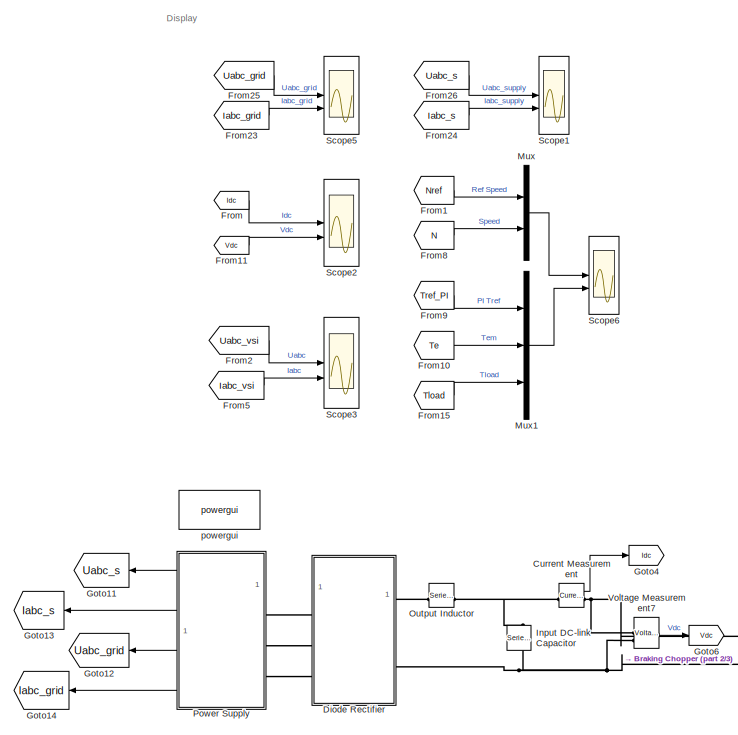
[diagram: root canvas - part 1/3, middle left region]
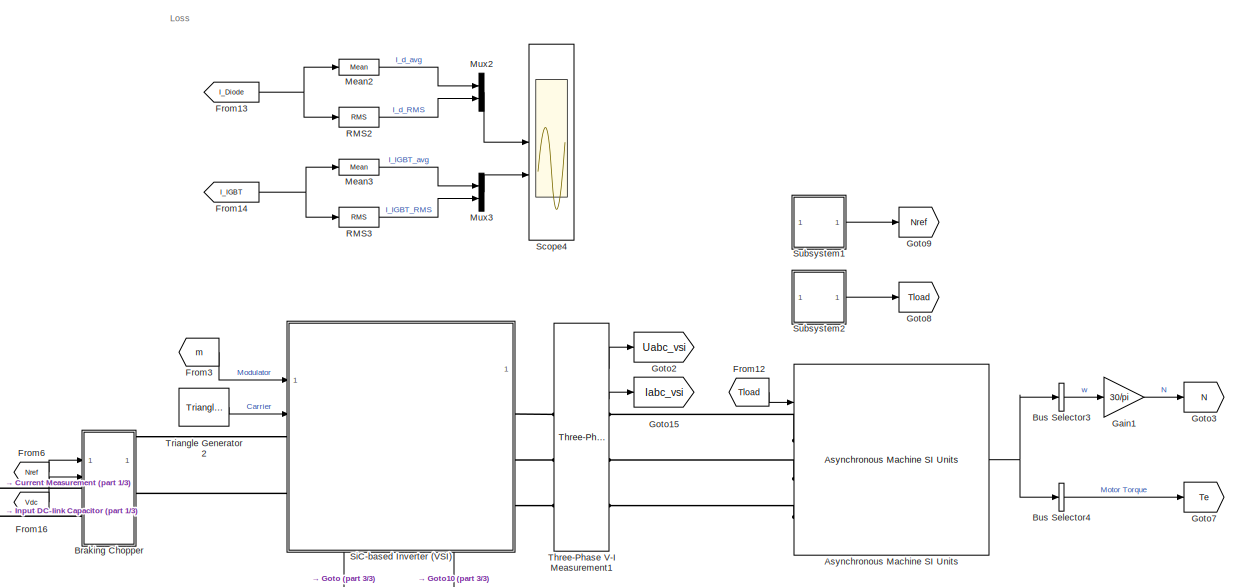
[diagram: root canvas - part 2/3, middle right region]
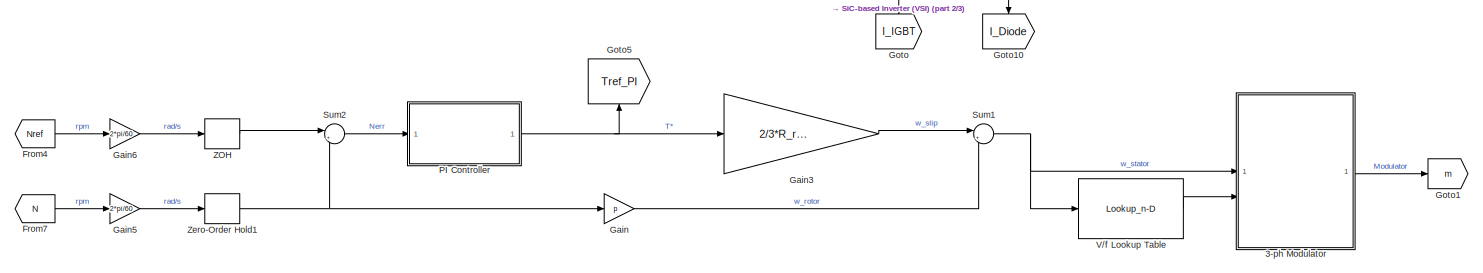
[diagram: root canvas - part 3/3, full width, bottom band]
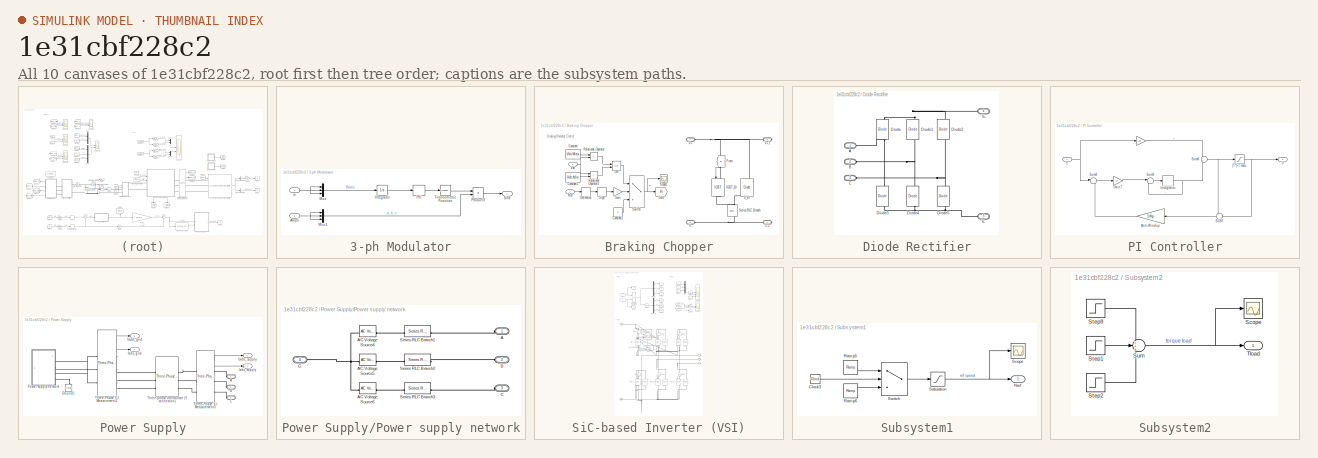
[diagram: thumbnail index - all 10 canvases of the model, root first then tree order]
MODEL slx_1e31cbf228c2
KIND model
CONFIG AbsTol = auto
CONFIG EnableMultiTasking = off
CONFIG FixedStep = auto
CONFIG MaxStep = auto
CONFIG MinStep = auto
CONFIG RelTol = 1e-3
CONFIG SampleTimeConstraint = Unconstrained
CONFIG SolverName = VariableStepAuto
CONFIG StartTime = 0.0
CONFIG StopTime = T_tot
BLOCK [SubSystem] 3-ph Modulator
BLOCK [Inport] 3-ph Modulator/Ampli
  Port = 2
BLOCK [Integrator] 3-ph Modulator/Integrator
BLOCK [Mux] 3-ph Modulator/Mux
  DisplayOption = bar
  Inputs = 3
BLOCK [Mux] 3-ph Modulator/Mux1
  DisplayOption = bar
  Inputs = 3
BLOCK [Bias] 3-ph Modulator/Phi
  Bias = [0, -2*pi/3, 2*pi/3]
  SaturateOnIntegerOverflow = off
BLOCK [Product] 3-ph Modulator/Product3
BLOCK [Outport] 3-ph Modulator/Sine
BLOCK [Trigonometry] 3-ph Modulator/Trigonometric Function
BLOCK [Inport] 3-ph Modulator/w
BLOCK [Reference] Asynchronous Machine SI Units  REF=spsAsynchronousMachineSIUnitsLib/Asynchronous Machine
SI Units
  LibrarySourceBlock = sps_lib/Electrical Machines/Asynchronous Machine\nSI Units
  SourceBlock = spsAsynchronousMachineSIUnitsLib/Asynchronous Machine\nSI Units
  SourceType = Asynchronous Machine
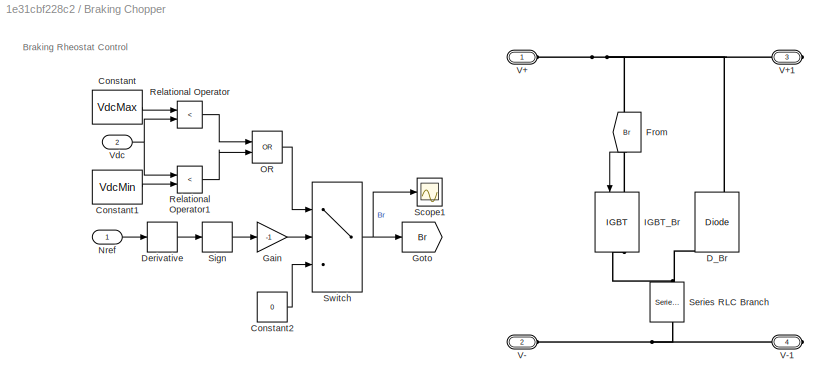
BLOCK [SubSystem] Braking Chopper
  PortSchema = {"entries":[{"content":{"sides":[{"content":{"connectorIds":["LConn1","In1","In2","LConn2"]},"type":"ConnectorPlacement.EquallySpacedRectSide","uuid":"08066bb6-7173-482b-b457-6e49107a8511"},{"content":{"connectorIds":["RConn1","RConn2"],"side":"RIGHT"},"type":"ConnectorPlacement.EquallySpacedRectSide","uuid":"28fab536-82b6-47c9-b368-73f431d395c4"},{"content":{"side":"TOP"},"type":"ConnectorPlaceme...<+257ch>
BLOCK [Constant] Braking Chopper/Constant
  Value = VdcMax
BLOCK [Constant] Braking Chopper/Constant1
  Value = VdcMin
BLOCK [Constant] Braking Chopper/Constant2
  Value = 0
BLOCK [Reference] Braking Chopper/D_Br  REF=spsDiodeLib/Diode
  LibrarySourceBlock = sps_lib/Power Electronics/Diode
  NameLocation = right
  SourceBlock = spsDiodeLib/Diode
  SourceType = Diode
BLOCK [Derivative] Braking Chopper/Derivative
BLOCK [From] Braking Chopper/From
  GotoTag = Br
  NameLocation = left
BLOCK [Gain] Braking Chopper/Gain
  Gain = -1
BLOCK [Goto] Braking Chopper/Goto
  GotoTag = Br
BLOCK [Reference] Braking Chopper/IGBT_Br  REF=spsIGBTLib/IGBT
  LibrarySourceBlock = sps_lib/Power Electronics/IGBT
  NameLocation = left
  SourceBlock = spsIGBTLib/IGBT
  SourceType = IGBT
BLOCK [Inport] Braking Chopper/Nref
BLOCK [Logic] Braking Chopper/OR
  AllPortsSameDT = off
  IconShape = distinctive
  Operator = OR
  OutDataTypeStr = boolean
BLOCK [RelationalOperator] Braking Chopper/Relational Operator
  InputSameDT = off
  Operator = <
  OutDataTypeStr = boolean
  RndMeth = Simplest
BLOCK [RelationalOperator] Braking Chopper/Relational Operator1
  InputSameDT = off
  Operator = <
  OutDataTypeStr = boolean
  RndMeth = Simplest
BLOCK [Scope] Braking Chopper/Scope1
  Floating = off
  NumInputPorts = 1
  ScopeSpecificationString = Simulink.scopes.TimeScopeBlockCfg('CurrentConfiguration', extmgr.ConfigurationSet(extmgr.Configuration('Core','General UI',true,'FigureColor',[1 1 1]),extmgr.Configuration('Core','Source UI',true),extmgr.Configuration('Sources','WiredSimulink',true,'DataLoggingVariableName','ScopeData1'),extmgr.Configuration('Visuals','Time Domain',true,'SerializedDisplays',{struct('MinYLimReal','-0.125','MaxYLimR...<+1944ch>
BLOCK [Reference] Braking Chopper/Series RLC Branch  REF=spsSeriesRLCBranchLib/Series RLC Branch
  LibrarySourceBlock = sps_lib/Passives/Series RLC Branch
  NameLocation = left
  SourceBlock = spsSeriesRLCBranchLib/Series RLC Branch
  SourceType = Series RLC Branch
BLOCK [Signum] Braking Chopper/Sign
BLOCK [Switch] Braking Chopper/Switch
  Criteria = u2 > Threshold
  InputSameDT = off
  SaturateOnIntegerOverflow = off
BLOCK [PMIOPort] Braking Chopper/V+
  Side = Left
BLOCK [PMIOPort] Braking Chopper/V+1
  Port = 3
  Side = Right
BLOCK [PMIOPort] Braking Chopper/V-
  Port = 2
  Side = Left
BLOCK [PMIOPort] Braking Chopper/V-1
  Port = 4
  Side = Right
BLOCK [Inport] Braking Chopper/Vdc
  Port = 2
BLOCK [BusSelector] Bus Selector3
  OutputAsBus = on
  OutputSignals = Mechanical.Rotor speed (wm)
BLOCK [BusSelector] Bus Selector4
  OutputAsBus = on
  OutputSignals = Mechanical.Electromagnetic torque Te (N*m)
BLOCK [Reference] Current Measurement  REF=spsCurrentMeasurementLib/Current Measurement
  LibrarySourceBlock = sps_lib/Sensors and Measurements/Current Measurement
  SourceBlock = spsCurrentMeasurementLib/Current Measurement
  SourceType = Current Measurement
  UserDataPersistent = on
BLOCK [SubSystem] Diode Rectifier
BLOCK [PMIOPort] Diode Rectifier/A
  Side = Left
BLOCK [PMIOPort] Diode Rectifier/B
  Port = 2
  Side = Left
BLOCK [PMIOPort] Diode Rectifier/C
  Port = 3
  Side = Left
BLOCK [Reference] Diode Rectifier/Diode  REF=spsDiodeLib/Diode
  LibrarySourceBlock = sps_lib/Power Electronics/Diode
  NameLocation = right
  SourceBlock = spsDiodeLib/Diode
  SourceType = Diode
BLOCK [Reference] Diode Rectifier/Diode1  REF=spsDiodeLib/Diode
  LibrarySourceBlock = sps_lib/Power Electronics/Diode
  NameLocation = right
  SourceBlock = spsDiodeLib/Diode
  SourceType = Diode
BLOCK [Reference] Diode Rectifier/Diode2  REF=spsDiodeLib/Diode
  LibrarySourceBlock = sps_lib/Power Electronics/Diode
  NameLocation = right
  SourceBlock = spsDiodeLib/Diode
  SourceType = Diode
BLOCK [Reference] Diode Rectifier/Diode3  REF=spsDiodeLib/Diode
  LibrarySourceBlock = sps_lib/Power Electronics/Diode
  NameLocation = right
  SourceBlock = spsDiodeLib/Diode
  SourceType = Diode
BLOCK [Reference] Diode Rectifier/Diode4  REF=spsDiodeLib/Diode
  LibrarySourceBlock = sps_lib/Power Electronics/Diode
  NameLocation = right
  SourceBlock = spsDiodeLib/Diode
  SourceType = Diode
BLOCK [Reference] Diode Rectifier/Diode5  REF=spsDiodeLib/Diode
  LibrarySourceBlock = sps_lib/Power Electronics/Diode
  NameLocation = right
  SourceBlock = spsDiodeLib/Diode
  SourceType = Diode
BLOCK [PMIOPort] Diode Rectifier/V+
  Port = 4
  Side = Right
BLOCK [PMIOPort] Diode Rectifier/V-
  Port = 5
  Side = Right
BLOCK [From] From
  GotoTag = Idc
BLOCK [From] From1
  GotoTag = Nref
BLOCK [From] From10
  GotoTag = Te
BLOCK [From] From11
  GotoTag = Vdc
BLOCK [From] From12
  GotoTag = Tload
BLOCK [From] From13
  GotoTag = I_Diode
BLOCK [From] From14
  GotoTag = I_IGBT
BLOCK [From] From15
  GotoTag = Tload
BLOCK [From] From16
  GotoTag = Vdc
BLOCK [From] From2
  GotoTag = Uabc_vsi
BLOCK [From] From23
  GotoTag = Iabc_grid
BLOCK [From] From24
  GotoTag = Iabc_s
BLOCK [From] From25
  GotoTag = Uabc_grid
BLOCK [From] From26
  GotoTag = Uabc_s
BLOCK [From] From3
  GotoTag = m
BLOCK [From] From4
  GotoTag = Nref
BLOCK [From] From5
  GotoTag = Iabc_vsi
BLOCK [From] From6
  GotoTag = Nref
BLOCK [From] From7
  GotoTag = N
BLOCK [From] From8
  GotoTag = N
BLOCK [From] From9
  GotoTag = Tref_PI
BLOCK [Gain] Gain
  Gain = p
BLOCK [Gain] Gain1
  Gain = 30/pi
BLOCK [Gain] Gain3
  Gain = 2/3*R_r/(p*Phi_n^2)
BLOCK [Gain] Gain5
  Gain = 2*pi/60
BLOCK [Gain] Gain6
  Gain = 2*pi/60
BLOCK [Goto] Goto
  GotoTag = I_IGBT
  NameLocation = left
BLOCK [Goto] Goto1
  GotoTag = m
BLOCK [Goto] Goto10
  GotoTag = I_Diode
  NameLocation = left
BLOCK [Goto] Goto11
  GotoTag = Uabc_s
  NameLocation = top
BLOCK [Goto] Goto12
  GotoTag = Uabc_grid
  NameLocation = top
BLOCK [Goto] Goto13
  GotoTag = Iabc_s
  NameLocation = top
BLOCK [Goto] Goto14
  GotoTag = Iabc_grid
  NameLocation = top
BLOCK [Goto] Goto15
  GotoTag = Iabc_vsi
BLOCK [Goto] Goto2
  GotoTag = Uabc_vsi
BLOCK [Goto] Goto3
  GotoTag = N
BLOCK [Goto] Goto4
  GotoTag = Idc
BLOCK [Goto] Goto5
  GotoTag = Tref_PI
  NameLocation = right
BLOCK [Goto] Goto6
  GotoTag = Vdc
BLOCK [Goto] Goto7
  GotoTag = Te
BLOCK [Goto] Goto8
  GotoTag = Tload
BLOCK [Goto] Goto9
  GotoTag = Nref
BLOCK [Reference] Input DC-link Capacitor  REF=spsSeriesRLCBranchLib/Series RLC Branch
  LibrarySourceBlock = sps_lib/Passives/Series RLC Branch
  NameLocation = left
  SourceBlock = spsSeriesRLCBranchLib/Series RLC Branch
  SourceType = Series RLC Branch
BLOCK [Reference] Mean2  REF=spsMeanLib/Mean
  LibrarySourceBlock = sps_lib/Sensors and Measurements/Mean
  SourceBlock = spsMeanLib/Mean
  SourceType = Mean
BLOCK [Reference] Mean3  REF=spsMeanLib/Mean
  LibrarySourceBlock = sps_lib/Sensors and Measurements/Mean
  SourceBlock = spsMeanLib/Mean
  SourceType = Mean
BLOCK [Mux] Mux
  DisplayOption = bar
  Inputs = 2
BLOCK [Mux] Mux1
  DisplayOption = bar
  Inputs = 3
BLOCK [Mux] Mux2
  DisplayOption = bar
  Inputs = 2
BLOCK [Mux] Mux3
  DisplayOption = bar
  Inputs = 2
BLOCK [Reference] Output Inductor  REF=spsSeriesRLCBranchLib/Series RLC Branch
  LibrarySourceBlock = sps_lib/Passives/Series RLC Branch
  NameLocation = top
  SourceBlock = spsSeriesRLCBranchLib/Series RLC Branch
  SourceType = Series RLC Branch
BLOCK [SubSystem] PI Controller
BLOCK [Gain] PI Controller/ 
  Gain = Kp
BLOCK [Gain] PI Controller/Anti-Windup
  Gain = 1/Kp
  NameLocation = top
BLOCK [Inport] PI Controller/E
BLOCK [Gain] PI Controller/Gain7
  Gain = Ki
BLOCK [Delay] PI Controller/Integrator
  DelayLength = 1
  InputPortMap = u0
  SampleTime = Ts_w
BLOCK [Sum] PI Controller/Sum6
BLOCK [Sum] PI Controller/Sum7
  Inputs = -+|
  NameLocation = top
BLOCK [Sum] PI Controller/Sum8
  Inputs = |++
BLOCK [Sum] PI Controller/Sum9
  Inputs = |++
BLOCK [Outport] PI Controller/U
BLOCK [Saturate] PI Controller/|T*|<Tmax
  LowerLimit = -T_sat
  UpperLimit = T_sat
BLOCK [SubSystem] Power Supply
BLOCK [PMIOPort] Power Supply/A
  Side = Left
BLOCK [PMIOPort] Power Supply/B
  Port = 2
  Side = Left
BLOCK [PMIOPort] Power Supply/C
  Port = 3
  Side = Left
BLOCK [Reference] Power Supply/Ground1  REF=spsGroundLib/Ground
  LibrarySourceBlock = sps_lib/Utilities/Ground
  NameLocation = right
  SourceBlock = spsGroundLib/Ground
  SourceType = Ground
BLOCK [Outport] Power Supply/Iabc_grid
  Port = 4
  VectorParamsAs1DForOutWhenUnconnected = off
BLOCK [Outport] Power Supply/Iabc_supply
  Port = 2
  VectorParamsAs1DForOutWhenUnconnected = off
BLOCK [SubSystem] Power Supply/Power supply network
  NameLocation = top
BLOCK [PMIOPort] Power Supply/Power supply network/A
  Side = Left
BLOCK [Reference] Power Supply/Power supply network/AC Voltage Source4  REF=spsACVoltageSourceLib/AC Voltage Source
  LibrarySourceBlock = sps_lib/Sources/AC Voltage Source
  NameLocation = left
  SourceBlock = spsACVoltageSourceLib/AC Voltage Source
  SourceType = AC Voltage Source
BLOCK [Reference] Power Supply/Power supply network/AC Voltage Source5  REF=spsACVoltageSourceLib/AC Voltage Source
  LibrarySourceBlock = sps_lib/Sources/AC Voltage Source
  NameLocation = left
  SourceBlock = spsACVoltageSourceLib/AC Voltage Source
  SourceType = AC Voltage Source
BLOCK [Reference] Power Supply/Power supply network/AC Voltage Source6  REF=spsACVoltageSourceLib/AC Voltage Source
  LibrarySourceBlock = sps_lib/Sources/AC Voltage Source
  NameLocation = left
  SourceBlock = spsACVoltageSourceLib/AC Voltage Source
  SourceType = AC Voltage Source
BLOCK [PMIOPort] Power Supply/Power supply network/B
  Port = 2
  Side = Left
BLOCK [PMIOPort] Power Supply/Power supply network/C
  Port = 3
  Side = Left
BLOCK [PMIOPort] Power Supply/Power supply network/G
  Port = 4
  Side = Left
BLOCK [Reference] Power Supply/Power supply network/Series RLC Branch1  REF=spsSeriesRLCBranchLib/Series RLC Branch
  LibrarySourceBlock = sps_lib/Passives/Series RLC Branch
  NameLocation = top
  SourceBlock = spsSeriesRLCBranchLib/Series RLC Branch
  SourceType = Series RLC Branch
BLOCK [Reference] Power Supply/Power supply network/Series RLC Branch2  REF=spsSeriesRLCBranchLib/Series RLC Branch
  LibrarySourceBlock = sps_lib/Passives/Series RLC Branch
  NameLocation = top
  SourceBlock = spsSeriesRLCBranchLib/Series RLC Branch
  SourceType = Series RLC Branch
BLOCK [Reference] Power Supply/Power supply network/Series RLC Branch3  REF=spsSeriesRLCBranchLib/Series RLC Branch
  LibrarySourceBlock = sps_lib/Passives/Series RLC Branch
  NameLocation = top
  SourceBlock = spsSeriesRLCBranchLib/Series RLC Branch
  SourceType = Series RLC Branch
BLOCK [Reference] Power Supply/Three-Phase V-I Measurement2  REF=spsThreePhaseVIMeasurementLib/Three-Phase
V-I Measurement
  LibrarySourceBlock = sps_lib/Sensors and Measurements/Three-Phase\nV-I Measurement
  SourceBlock = spsThreePhaseVIMeasurementLib/Three-Phase\nV-I Measurement
  SourceType = Three-Phase VI Measurement
BLOCK [Reference] Power Supply/Three-Phase V-I Measurement3  REF=spsThreePhaseVIMeasurementLib/Three-Phase
V-I Measurement
  LibrarySourceBlock = sps_lib/Sensors and Measurements/Three-Phase\nV-I Measurement
  SourceBlock = spsThreePhaseVIMeasurementLib/Three-Phase\nV-I Measurement
  SourceType = Three-Phase VI Measurement
BLOCK [Reference] Power Supply/Three-phase transformer (Y connection)  REF=spsThreePhaseTransformerTwoWindingsLib/Three-Phase
Transformer
(Two Windings)
  LibrarySourceBlock = sps_lib/Power Grid Elements/Three-Phase\nTransformer\n(Two Windings)
  SourceBlock = spsThreePhaseTransformerTwoWindingsLib/Three-Phase\nTransformer\n(Two Windings)
  SourceType = Three-Phase Transformer (Two Windings)
BLOCK [Outport] Power Supply/Uabc_grid
  NameLocation = top
  Port = 3
  VectorParamsAs1DForOutWhenUnconnected = off
BLOCK [Outport] Power Supply/Uabc_supply
  NameLocation = top
  VectorParamsAs1DForOutWhenUnconnected = off
BLOCK [Reference] RMS2  REF=spsRMSLib/RMS
  LibrarySourceBlock = sps_lib/Sensors and Measurements/RMS
  SourceBlock = spsRMSLib/RMS
  SourceType = RMS
BLOCK [Reference] RMS3  REF=spsRMSLib/RMS
  LibrarySourceBlock = sps_lib/Sensors and Measurements/RMS
  SourceBlock = spsRMSLib/RMS
  SourceType = RMS
BLOCK [Scope] Scope1
  Floating = off
  NumInputPorts = 2
  ScopeSpecificationString = Simulink.scopes.TimeScopeBlockCfg('CurrentConfiguration', extmgr.ConfigurationSet(extmgr.Configuration('Core','General UI',true,'FigureColor',[1 1 1]),extmgr.Configuration('Core','Source UI',true),extmgr.Configuration('Sources','WiredSimulink',true,'DataLoggingVariableName','Supply','DataLogging',true,'DataLoggingSaveFormat','StructureWithTime'),extmgr.Configuration('Visuals','Time Domain',true,'S...<+4064ch>
BLOCK [Scope] Scope2
  Floating = off
  NumInputPorts = 2
  ScopeSpecificationString = Simulink.scopes.TimeScopeBlockCfg('CurrentConfiguration', extmgr.ConfigurationSet(extmgr.Configuration('Core','General UI',true,'FigureColor',[1 1 1]),extmgr.Configuration('Core','Source UI',true),extmgr.Configuration('Sources','WiredSimulink',true,'DataLoggingVariableName','Rectifier','DataLogging',true,'DataLoggingSaveFormat','StructureWithTime'),extmgr.Configuration('Visuals','Time Domain',true...<+2544ch>
BLOCK [Scope] Scope3
  Floating = off
  NumInputPorts = 2
  ScopeSpecificationString = Simulink.scopes.TimeScopeBlockCfg('CurrentConfiguration', extmgr.ConfigurationSet(extmgr.Configuration('Core','General UI',true,'FigureColor',[1 1 1]),extmgr.Configuration('Core','Source UI',true),extmgr.Configuration('Sources','WiredSimulink',true,'DataLoggingVariableName','VSI','DataLogging',true,'DataLoggingSaveFormat','StructureWithTime'),extmgr.Configuration('Visuals','Time Domain',true,'Seri...<+2905ch>
BLOCK [Scope] Scope4
  Floating = off
  NumInputPorts = 2
  ScopeSpecificationString = Simulink.scopes.TimeScopeBlockCfg('CurrentConfiguration', extmgr.ConfigurationSet(extmgr.Configuration('Core','General UI',true,'FigureColor',[1 1 1]),extmgr.Configuration('Core','Source UI',true),extmgr.Configuration('Sources','WiredSimulink',true,'DataLoggingVariableName','Switch','DataLogging',true,'DataLoggingSaveFormat','StructureWithTime'),extmgr.Configuration('Visuals','Time Domain',true,'S...<+2671ch>
BLOCK [Scope] Scope5
  Floating = off
  NumInputPorts = 2
  ScopeSpecificationString = Simulink.scopes.TimeScopeBlockCfg('CurrentConfiguration', extmgr.ConfigurationSet(extmgr.Configuration('Core','General UI',true,'FigureColor',[1 1 1]),extmgr.Configuration('Core','Source UI',true),extmgr.Configuration('Sources','WiredSimulink',true,'DataLoggingVariableName','Grid','DataLogging',true,'DataLoggingSaveFormat','StructureWithTime'),extmgr.Configuration('Visuals','Time Domain',true,'Ser...<+4064ch>
BLOCK [Scope] Scope6
  Floating = off
  NumInputPorts = 2
  ScopeSpecificationString = Simulink.scopes.TimeScopeBlockCfg('CurrentConfiguration', extmgr.ConfigurationSet(extmgr.Configuration('Core','General UI',true,'FigureColor',[1 1 1]),extmgr.Configuration('Core','Source UI',true),extmgr.Configuration('Sources','WiredSimulink',true,'DataLoggingVariableName','IMOutput','DataLogging',true,'DataLoggingSaveFormat','StructureWithTime'),extmgr.Configuration('Visuals','Time Domain',true,...<+2663ch>
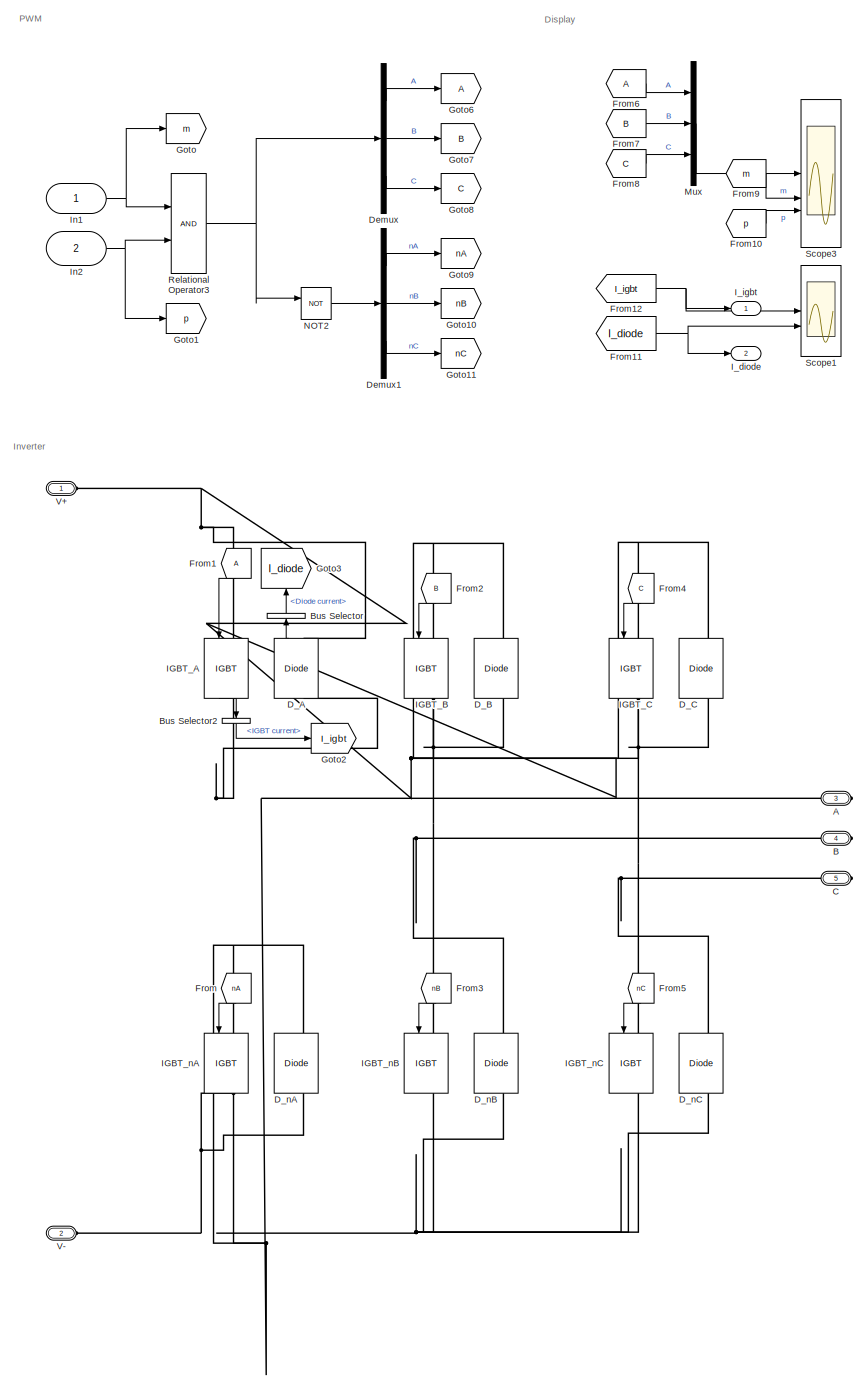
[diagram: SiC-based Inverter (VSI) - part 1/1, most of the canvas]
BLOCK [SubSystem] SiC-based Inverter (VSI)
  PortSchema = {"entries":[{"content":{"sides":[{"content":{"connectorIds":["In1","In2","LConn1","LConn2"]},"type":"ConnectorPlacement.EquallySpacedRectSide","uuid":"45fc5859-179e-40d9-92a1-bdc86f2558ba"},{"content":{"connectorIds":["RConn1","RConn2","RConn3"],"side":"RIGHT"},"type":"ConnectorPlacement.EquallySpacedRectSide","uuid":"a0d57c1e-c527-4dbd-a036-7c0d4c1ba50f"},{"content":{"side":"TOP"},"type":"Connect...<+423ch>
BLOCK [PMIOPort] SiC-based Inverter (VSI)/A
  Port = 3
  Side = Right
BLOCK [PMIOPort] SiC-based Inverter (VSI)/B
  Port = 4
  Side = Right
BLOCK [BusSelector] SiC-based Inverter (VSI)/Bus Selector
  NameLocation = right
  OutputSignals = Diode current
BLOCK [BusSelector] SiC-based Inverter (VSI)/Bus Selector2
  NameLocation = left
  OutputSignals = IGBT current
BLOCK [PMIOPort] SiC-based Inverter (VSI)/C
  Port = 5
  Side = Right
BLOCK [Reference] SiC-based Inverter (VSI)/D_A  REF=spsDiodeLib/Diode
  LibrarySourceBlock = sps_lib/Power Electronics/Diode
  NameLocation = right
  SourceBlock = spsDiodeLib/Diode
  SourceType = Diode
BLOCK [Reference] SiC-based Inverter (VSI)/D_B  REF=spsDiodeLib/Diode
  LibrarySourceBlock = sps_lib/Power Electronics/Diode
  NameLocation = right
  SourceBlock = spsDiodeLib/Diode
  SourceType = Diode
BLOCK [Reference] SiC-based Inverter (VSI)/D_C  REF=spsDiodeLib/Diode
  LibrarySourceBlock = sps_lib/Power Electronics/Diode
  NameLocation = right
  SourceBlock = spsDiodeLib/Diode
  SourceType = Diode
BLOCK [Reference] SiC-based Inverter (VSI)/D_nA  REF=spsDiodeLib/Diode
  LibrarySourceBlock = sps_lib/Power Electronics/Diode
  NameLocation = right
  SourceBlock = spsDiodeLib/Diode
  SourceType = Diode
BLOCK [Reference] SiC-based Inverter (VSI)/D_nB  REF=spsDiodeLib/Diode
  LibrarySourceBlock = sps_lib/Power Electronics/Diode
  NameLocation = right
  SourceBlock = spsDiodeLib/Diode
  SourceType = Diode
BLOCK [Reference] SiC-based Inverter (VSI)/D_nC  REF=spsDiodeLib/Diode
  LibrarySourceBlock = sps_lib/Power Electronics/Diode
  NameLocation = right
  SourceBlock = spsDiodeLib/Diode
  SourceType = Diode
BLOCK [Demux] SiC-based Inverter (VSI)/Demux
  Outputs = 3
BLOCK [Demux] SiC-based Inverter (VSI)/Demux1
  Outputs = 3
BLOCK [From] SiC-based Inverter (VSI)/From
  GotoTag = nA
  NameLocation = left
BLOCK [From] SiC-based Inverter (VSI)/From1
  NameLocation = left
BLOCK [From] SiC-based Inverter (VSI)/From10
  GotoTag = p
BLOCK [From] SiC-based Inverter (VSI)/From11
  GotoTag = I_diode
BLOCK [From] SiC-based Inverter (VSI)/From12
  GotoTag = I_igbt
BLOCK [From] SiC-based Inverter (VSI)/From2
  GotoTag = B
  NameLocation = left
BLOCK [From] SiC-based Inverter (VSI)/From3
  GotoTag = nB
  NameLocation = left
BLOCK [From] SiC-based Inverter (VSI)/From4
  GotoTag = C
  NameLocation = left
BLOCK [From] SiC-based Inverter (VSI)/From5
  GotoTag = nC
  NameLocation = left
BLOCK [From] SiC-based Inverter (VSI)/From6
BLOCK [From] SiC-based Inverter (VSI)/From7
  GotoTag = B
BLOCK [From] SiC-based Inverter (VSI)/From8
  GotoTag = C
BLOCK [From] SiC-based Inverter (VSI)/From9
  GotoTag = m
BLOCK [Goto] SiC-based Inverter (VSI)/Goto
  GotoTag = m
BLOCK [Goto] SiC-based Inverter (VSI)/Goto1
  GotoTag = p
BLOCK [Goto] SiC-based Inverter (VSI)/Goto10
  GotoTag = nB
BLOCK [Goto] SiC-based Inverter (VSI)/Goto11
  GotoTag = nC
BLOCK [Goto] SiC-based Inverter (VSI)/Goto2
  GotoTag = I_igbt
BLOCK [Goto] SiC-based Inverter (VSI)/Goto3
  GotoTag = I_diode
  NameLocation = right
BLOCK [Goto] SiC-based Inverter (VSI)/Goto6
BLOCK [Goto] SiC-based Inverter (VSI)/Goto7
  GotoTag = B
BLOCK [Goto] SiC-based Inverter (VSI)/Goto8
  GotoTag = C
BLOCK [Goto] SiC-based Inverter (VSI)/Goto9
  GotoTag = nA
BLOCK [Reference] SiC-based Inverter (VSI)/IGBT_A  REF=spsIGBTLib/IGBT
  LibrarySourceBlock = sps_lib/Power Electronics/IGBT
  NameLocation = left
  SourceBlock = spsIGBTLib/IGBT
  SourceType = IGBT
BLOCK [Reference] SiC-based Inverter (VSI)/IGBT_B  REF=spsIGBTLib/IGBT
  LibrarySourceBlock = sps_lib/Power Electronics/IGBT
  NameLocation = left
  SourceBlock = spsIGBTLib/IGBT
  SourceType = IGBT
BLOCK [Reference] SiC-based Inverter (VSI)/IGBT_C  REF=spsIGBTLib/IGBT
  LibrarySourceBlock = sps_lib/Power Electronics/IGBT
  NameLocation = left
  SourceBlock = spsIGBTLib/IGBT
  SourceType = IGBT
BLOCK [Reference] SiC-based Inverter (VSI)/IGBT_nA  REF=spsIGBTLib/IGBT
  LibrarySourceBlock = sps_lib/Power Electronics/IGBT
  NameLocation = left
  SourceBlock = spsIGBTLib/IGBT
  SourceType = IGBT
BLOCK [Reference] SiC-based Inverter (VSI)/IGBT_nB  REF=spsIGBTLib/IGBT
  LibrarySourceBlock = sps_lib/Power Electronics/IGBT
  NameLocation = left
  SourceBlock = spsIGBTLib/IGBT
  SourceType = IGBT
BLOCK [Reference] SiC-based Inverter (VSI)/IGBT_nC  REF=spsIGBTLib/IGBT
  LibrarySourceBlock = sps_lib/Power Electronics/IGBT
  NameLocation = left
  SourceBlock = spsIGBTLib/IGBT
  SourceType = IGBT
BLOCK [Outport] SiC-based Inverter (VSI)/I_diode
  Port = 2
BLOCK [Outport] SiC-based Inverter (VSI)/I_igbt
BLOCK [Inport] SiC-based Inverter (VSI)/In1
  IconDisplay = Signal name
BLOCK [Inport] SiC-based Inverter (VSI)/In2
  IconDisplay = Signal name
  Port = 2
BLOCK [Mux] SiC-based Inverter (VSI)/Mux
  DisplayOption = bar
  Inputs = 3
BLOCK [Logic] SiC-based Inverter (VSI)/NOT2
  AllPortsSameDT = off
  Operator = NOT
  OutDataTypeStr = boolean
BLOCK [RelationalOperator] SiC-based Inverter (VSI)/Relational Operator3
  InputSameDT = off
  OutDataTypeStr = boolean
  RndMeth = Simplest
BLOCK [Scope] SiC-based Inverter (VSI)/Scope1
  Floating = off
  NumInputPorts = 2
  ScopeSpecificationString = Simulink.scopes.TimeScopeBlockCfg('CurrentConfiguration', extmgr.ConfigurationSet(extmgr.Configuration('Core','General UI',true,'FigureColor',[1 1 1]),extmgr.Configuration('Core','Source UI',true),extmgr.Configuration('Sources','WiredSimulink',true,'DataLoggingVariableName','ScopeData1'),extmgr.Configuration('Visuals','Time Domain',true,'SerializedDisplays',{struct('MinYLimReal','-12.34827','MaxYL...<+3085ch>
BLOCK [Scope] SiC-based Inverter (VSI)/Scope3
  Floating = off
  NumInputPorts = 3
  ScopeSpecificationString = Simulink.scopes.TimeScopeBlockCfg('CurrentConfiguration', extmgr.ConfigurationSet(extmgr.Configuration('Core','General UI',true,'FigureColor',[1 1 1]),extmgr.Configuration('Core','Source UI',true),extmgr.Configuration('Sources','WiredSimulink',true,'DataLoggingVariableName','ScopeData1'),extmgr.Configuration('Visuals','Time Domain',true,'SerializedDisplays',{struct('MinYLimReal','-0.125','MaxYLimR...<+2969ch>
BLOCK [PMIOPort] SiC-based Inverter (VSI)/V+
  Side = Left
BLOCK [PMIOPort] SiC-based Inverter (VSI)/V-
  NameLocation = top
  Port = 2
  Side = Left
BLOCK [SubSystem] Subsystem1
BLOCK [Clock] Subsystem1/Clock3
BLOCK [Outport] Subsystem1/Nref
BLOCK [Reference] Subsystem1/Ramp5  REF=simulink/Sources/Ramp
  SourceBlock = simulink/Sources/Ramp
  SourceType = Ramp
BLOCK [Reference] Subsystem1/Ramp6  REF=simulink/Sources/Ramp
  SourceBlock = simulink/Sources/Ramp
  SourceType = Ramp
BLOCK [Saturate] Subsystem1/Saturation
  LowerLimit = 0
  UpperLimit = N_steady
BLOCK [Scope] Subsystem1/Scope
  Floating = off
  NumInputPorts = 1
  ScopeSpecificationString = Simulink.scopes.TimeScopeBlockCfg('CurrentConfiguration', extmgr.ConfigurationSet(extmgr.Configuration('Core','General UI',true,'FigureColor',[1 1 1]),extmgr.Configuration('Core','Source UI',true),extmgr.Configuration('Sources','WiredSimulink',true,'DataLoggingVariableName','ScopeData1'),extmgr.Configuration('Visuals','Time Domain',true,'SerializedDisplays',{struct('MinYLimReal','-175.00000','MaxY...<+1674ch>
BLOCK [Switch] Subsystem1/Switch
  Criteria = u2 > Threshold
  InputSameDT = off
  SaturateOnIntegerOverflow = off
  Threshold = t_rampdown_start
BLOCK [SubSystem] Subsystem2
BLOCK [Scope] Subsystem2/Scope
  Floating = off
  NumInputPorts = 1
  ScopeSpecificationString = Simulink.scopes.TimeScopeBlockCfg('CurrentConfiguration', extmgr.ConfigurationSet(extmgr.Configuration('Core','General UI',true,'FigureColor',[1 1 1]),extmgr.Configuration('Core','Source UI',true),extmgr.Configuration('Sources','WiredSimulink',true,'DataLoggingVariableName','ScopeData1'),extmgr.Configuration('Visuals','Time Domain',true,'SerializedDisplays',{struct('MinYLimReal','-125.00000','MaxY...<+1672ch>
BLOCK [Step] Subsystem2/Step1
  After = -2*T_load
  SampleTime = 0
  Time = t_rampdown_start + t_delay_down
BLOCK [Step] Subsystem2/Step2
  After = T_load
  SampleTime = 0
  Time = t_rampdown_end
BLOCK [Step] Subsystem2/Step8
  After = T_load
  SampleTime = 0
  Time = t_rampup_start + t_delay_up
BLOCK [Sum] Subsystem2/Sum
  Inputs = +++
BLOCK [Outport] Subsystem2/Tload
BLOCK [Sum] Sum1
  Inputs = |++
BLOCK [Sum] Sum2
  Inputs = |+-
BLOCK [Reference] Three-Phase V-I Measurement1  REF=spsThreePhaseVIMeasurementLib/Three-Phase
V-I Measurement
  LibrarySourceBlock = sps_lib/Sensors and Measurements/Three-Phase\nV-I Measurement
  SourceBlock = spsThreePhaseVIMeasurementLib/Three-Phase\nV-I Measurement
  SourceType = Three-Phase VI Measurement
BLOCK [Reference] Triangle Generator2  REF=spsTriangleGeneratorLib/Triangle
Generator
  LibrarySourceBlock = sps_lib/Sources/Signal Generator Sources/Triangle\nGenerator
  SourceBlock = spsTriangleGeneratorLib/Triangle\nGenerator
  SourceType = Triangle Generator
BLOCK [Lookup_n-D] V//f Lookup Table
  BreakpointsForDimension1 = V_f_in
  InputPortMap = u0
  InternalRulePriority = Speed
  NumberOfTableDimensions = 1
  RndMeth = Simplest
  Table = V_f_out
BLOCK [Reference] Voltage Measurement7  REF=spsVoltageMeasurementLib/Voltage Measurement
  LibrarySourceBlock = sps_lib/Sensors and Measurements/Voltage Measurement
  SourceBlock = spsVoltageMeasurementLib/Voltage Measurement
  SourceType = Voltage Measurement
  UserDataPersistent = on
BLOCK [ZeroOrderHold] ZOH
  SampleTime = Ts_w
BLOCK [ZeroOrderHold] Zero-Order Hold1
  SampleTime = Ts_w
BLOCK [Reference] powergui  REF=sps_lib/powergui
  LibrarySourceBlock = sps_lib/powergui
  Priority = 1
  SourceBlock = sps_lib/powergui
  SourceType = PSB option menu block
ANNOTATION (root): Display
ANNOTATION (root): Loss
ANNOTATION Braking Chopper: Braking Rheostat Control
ANNOTATION SiC-based Inverter (VSI): Display
ANNOTATION SiC-based Inverter (VSI): Inverter
ANNOTATION SiC-based Inverter (VSI): PWM
NET 3-ph Modulator/Ampli:1 -> 3-ph Modulator/Mux1:1, 3-ph Modulator/Mux1:2, 3-ph Modulator/Mux1:3
LINE 3-ph Modulator/Integrator:1 -> 3-ph Modulator/Phi:1
LINE 3-ph Modulator/Mux1:1 -> 3-ph Modulator/Product3:2
LINE 3-ph Modulator/Mux:1 -> 3-ph Modulator/Integrator:1
LINE 3-ph Modulator/Phi:1 -> 3-ph Modulator/Trigonometric Function:1
LINE 3-ph Modulator/Product3:1 -> 3-ph Modulator/Sine:1
LINE 3-ph Modulator/Trigonometric Function:1 -> 3-ph Modulator/Product3:1
NET 3-ph Modulator/w:1 -> 3-ph Modulator/Mux:1, 3-ph Modulator/Mux:2, 3-ph Modulator/Mux:3
LINE 3-ph Modulator:1 -> Goto1:1
NET Asynchronous Machine SI Units:1 -> Bus Selector3:1, Bus Selector4:1
LINE Braking Chopper/Constant1:1 -> Braking Chopper/Relational Operator1:2
LINE Braking Chopper/Constant2:1 -> Braking Chopper/Switch:3
LINE Braking Chopper/Constant:1 -> Braking Chopper/Relational Operator:1
LINE Braking Chopper/Derivative:1 -> Braking Chopper/Sign:1
LINE Braking Chopper/From:1 -> Braking Chopper/IGBT_Br:1
LINE Braking Chopper/Gain:1 -> Braking Chopper/Switch:2
LINE Braking Chopper/Nref:1 -> Braking Chopper/Derivative:1
LINE Braking Chopper/OR:1 -> Braking Chopper/Switch:1
LINE Braking Chopper/Relational Operator1:1 -> Braking Chopper/OR:2
LINE Braking Chopper/Relational Operator:1 -> Braking Chopper/OR:1
LINE Braking Chopper/Sign:1 -> Braking Chopper/Gain:1
NET Braking Chopper/Switch:1 -> Braking Chopper/Goto:1, Braking Chopper/Scope1:1
NET Braking Chopper/Vdc:1 -> Braking Chopper/Relational Operator1:1, Braking Chopper/Relational Operator:2
LINE Bus Selector3:1 -> Gain1:1
LINE Bus Selector4:1 -> Goto7:1
LINE Current Measurement:1 -> Goto4:1
LINE From10:1 -> Mux1:2
LINE From11:1 -> Scope2:2
LINE From12:1 -> Asynchronous Machine SI Units:1
NET From13:1 -> Mean2:1, RMS2:1
NET From14:1 -> Mean3:1, RMS3:1
LINE From15:1 -> Mux1:3
LINE From16:1 -> Braking Chopper:2
LINE From1:1 -> Mux:1
LINE From23:1 -> Scope5:2
LINE From24:1 -> Scope1:2
LINE From25:1 -> Scope5:1
LINE From26:1 -> Scope1:1
LINE From2:1 -> Scope3:1
LINE From3:1 -> SiC-based Inverter (VSI):1
LINE From4:1 -> Gain6:1
LINE From5:1 -> Scope3:2
LINE From6:1 -> Braking Chopper:1
LINE From7:1 -> Gain5:1
LINE From8:1 -> Mux:2
LINE From9:1 -> Mux1:1
LINE From:1 -> Scope2:1
LINE Gain1:1 -> Goto3:1
LINE Gain3:1 -> Sum1:1
LINE Gain5:1 -> Zero-Order Hold1:1
LINE Gain6:1 -> ZOH:1
LINE Gain:1 -> Sum1:2
LINE Mean2:1 -> Mux2:1
LINE Mean3:1 -> Mux3:1
LINE Mux1:1 -> Scope6:2
LINE Mux2:1 -> Scope4:1
LINE Mux3:1 -> Scope4:2
LINE Mux:1 -> Scope6:1
LINE PI Controller/ :1 -> PI Controller/Sum6:1
LINE PI Controller/Anti-Windup:1 -> PI Controller/Sum8:2
NET PI Controller/E:1 -> PI Controller/ :1, PI Controller/Sum8:1
LINE PI Controller/Gain7:1 -> PI Controller/Sum9:1
NET PI Controller/Integrator:1 -> PI Controller/Sum6:2, PI Controller/Sum9:2
NET PI Controller/Sum6:1 -> PI Controller/Sum7:1, PI Controller/|T*|<Tmax:1
LINE PI Controller/Sum7:1 -> PI Controller/Anti-Windup:1
LINE PI Controller/Sum8:1 -> PI Controller/Gain7:1
LINE PI Controller/Sum9:1 -> PI Controller/Integrator:1
NET PI Controller/|T*|<Tmax:1 -> PI Controller/Sum7:2, PI Controller/U:1
NET PI Controller:1 -> Gain3:1, Goto5:1
LINE Power Supply/Three-Phase V-I Measurement2:1 -> Power Supply/Uabc_grid:1
LINE Power Supply/Three-Phase V-I Measurement2:2 -> Power Supply/Iabc_grid:1
LINE Power Supply/Three-Phase V-I Measurement3:1 -> Power Supply/Uabc_supply:1
LINE Power Supply/Three-Phase V-I Measurement3:2 -> Power Supply/Iabc_supply:1
LINE Power Supply:1 -> Goto11:1
LINE Power Supply:2 -> Goto13:1
LINE Power Supply:3 -> Goto12:1
LINE Power Supply:4 -> Goto14:1
LINE RMS2:1 -> Mux2:2
LINE RMS3:1 -> Mux3:2
LINE SiC-based Inverter (VSI)/Bus Selector2:1 -> SiC-based Inverter (VSI)/Goto2:1
LINE SiC-based Inverter (VSI)/Bus Selector:1 -> SiC-based Inverter (VSI)/Goto3:1
LINE SiC-based Inverter (VSI)/D_A:1 -> SiC-based Inverter (VSI)/Bus Selector:1
LINE SiC-based Inverter (VSI)/Demux1:1 -> SiC-based Inverter (VSI)/Goto9:1
LINE SiC-based Inverter (VSI)/Demux1:2 -> SiC-based Inverter (VSI)/Goto10:1
LINE SiC-based Inverter (VSI)/Demux1:3 -> SiC-based Inverter (VSI)/Goto11:1
LINE SiC-based Inverter (VSI)/Demux:1 -> SiC-based Inverter (VSI)/Goto6:1
LINE SiC-based Inverter (VSI)/Demux:2 -> SiC-based Inverter (VSI)/Goto7:1
LINE SiC-based Inverter (VSI)/Demux:3 -> SiC-based Inverter (VSI)/Goto8:1
LINE SiC-based Inverter (VSI)/From10:1 -> SiC-based Inverter (VSI)/Scope3:3
NET SiC-based Inverter (VSI)/From11:1 -> SiC-based Inverter (VSI)/I_diode:1, SiC-based Inverter (VSI)/Scope1:2
NET SiC-based Inverter (VSI)/From12:1 -> SiC-based Inverter (VSI)/I_igbt:1, SiC-based Inverter (VSI)/Scope1:1
LINE SiC-based Inverter (VSI)/From1:1 -> SiC-based Inverter (VSI)/IGBT_A:1
LINE SiC-based Inverter (VSI)/From2:1 -> SiC-based Inverter (VSI)/IGBT_B:1
LINE SiC-based Inverter (VSI)/From3:1 -> SiC-based Inverter (VSI)/IGBT_nB:1
LINE SiC-based Inverter (VSI)/From4:1 -> SiC-based Inverter (VSI)/IGBT_C:1
LINE SiC-based Inverter (VSI)/From5:1 -> SiC-based Inverter (VSI)/IGBT_nC:1
LINE SiC-based Inverter (VSI)/From6:1 -> SiC-based Inverter (VSI)/Mux:1
LINE SiC-based Inverter (VSI)/From7:1 -> SiC-based Inverter (VSI)/Mux:2
LINE SiC-based Inverter (VSI)/From8:1 -> SiC-based Inverter (VSI)/Mux:3
LINE SiC-based Inverter (VSI)/From9:1 -> SiC-based Inverter (VSI)/Scope3:2
LINE SiC-based Inverter (VSI)/From:1 -> SiC-based Inverter (VSI)/IGBT_nA:1
LINE SiC-based Inverter (VSI)/IGBT_A:1 -> SiC-based Inverter (VSI)/Bus Selector2:1
NET SiC-based Inverter (VSI)/In1:1 -> SiC-based Inverter (VSI)/Goto:1, SiC-based Inverter (VSI)/Relational Operator3:1
NET SiC-based Inverter (VSI)/In2:1 -> SiC-based Inverter (VSI)/Goto1:1, SiC-based Inverter (VSI)/Relational Operator3:2
LINE SiC-based Inverter (VSI)/Mux:1 -> SiC-based Inverter (VSI)/Scope3:1
LINE SiC-based Inverter (VSI)/NOT2:1 -> SiC-based Inverter (VSI)/Demux1:1
NET SiC-based Inverter (VSI)/Relational Operator3:1 -> SiC-based Inverter (VSI)/Demux:1, SiC-based Inverter (VSI)/NOT2:1
LINE SiC-based Inverter (VSI):1 -> Goto:1
LINE SiC-based Inverter (VSI):2 -> Goto10:1
LINE Subsystem1/Clock3:1 -> Subsystem1/Switch:2
LINE Subsystem1/Ramp5:1 -> Subsystem1/Switch:1
LINE Subsystem1/Ramp6:1 -> Subsystem1/Switch:3
NET Subsystem1/Saturation:1 -> Subsystem1/Nref:1, Subsystem1/Scope:1
LINE Subsystem1/Switch:1 -> Subsystem1/Saturation:1
LINE Subsystem1:1 -> Goto9:1
LINE Subsystem2/Step1:1 -> Subsystem2/Sum:2
LINE Subsystem2/Step2:1 -> Subsystem2/Sum:3
LINE Subsystem2/Step8:1 -> Subsystem2/Sum:1
NET Subsystem2/Sum:1 -> Subsystem2/Scope:1, Subsystem2/Tload:1
LINE Subsystem2:1 -> Goto8:1
NET Sum1:1 -> 3-ph Modulator:1, V//f Lookup Table:1
LINE Sum2:1 -> PI Controller:1
LINE Three-Phase V-I Measurement1:1 -> Goto2:1
LINE Three-Phase V-I Measurement1:2 -> Goto15:1
LINE Triangle Generator2:1 -> SiC-based Inverter (VSI):2
LINE V//f Lookup Table:1 -> 3-ph Modulator:2
LINE Voltage Measurement7:1 -> Goto6:1
LINE ZOH:1 -> Sum2:1
NET Zero-Order Hold1:1 -> Gain:1, Sum2:2
PLINE Asynchronous Machine SI Units:LConn1 -- Three-Phase V-I Measurement1:RConn1
PLINE Asynchronous Machine SI Units:LConn2 -- Three-Phase V-I Measurement1:RConn2
PLINE Asynchronous Machine SI Units:LConn3 -- Three-Phase V-I Measurement1:RConn3
PNET net1: Braking Chopper/D_Br:LConn1 -- Braking Chopper/IGBT_Br:RConn1 -- Braking Chopper/Series RLC Branch:LConn1
PNET net2: Braking Chopper/D_Br:RConn1 -- Braking Chopper/IGBT_Br:LConn1 -- Braking Chopper/V+1:RConn1 -- Braking Chopper/V+:RConn1
PNET net3: Braking Chopper/Series RLC Branch:RConn1 -- Braking Chopper/V-1:RConn1 -- Braking Chopper/V-:RConn1
PNET net4: Braking Chopper:LConn1 -- Current Measurement:RConn1 -- Voltage Measurement7:LConn1
PNET net5: Braking Chopper:LConn2 -- Diode Rectifier:RConn2 -- Input DC-link Capacitor:RConn1 -- Voltage Measurement7:LConn2
PLINE Braking Chopper:RConn1 -- SiC-based Inverter (VSI):LConn1
PLINE Braking Chopper:RConn2 -- SiC-based Inverter (VSI):LConn2
PNET net6: Current Measurement:LConn1 -- Input DC-link Capacitor:LConn1 -- Output Inductor:LConn1
PNET net7: Diode Rectifier/A:RConn1 -- Diode Rectifier/Diode3:RConn1 -- Diode Rectifier/Diode:LConn1
PNET net8: Diode Rectifier/B:RConn1 -- Diode Rectifier/Diode1:LConn1 -- Diode Rectifier/Diode4:RConn1
PNET net9: Diode Rectifier/C:RConn1 -- Diode Rectifier/Diode2:LConn1 -- Diode Rectifier/Diode5:RConn1
PNET net10: Diode Rectifier/Diode1:RConn1 -- Diode Rectifier/Diode2:RConn1 -- Diode Rectifier/Diode:RConn1 -- Diode Rectifier/V+:RConn1
PNET net11: Diode Rectifier/Diode3:LConn1 -- Diode Rectifier/Diode4:LConn1 -- Diode Rectifier/Diode5:LConn1 -- Diode Rectifier/V-:RConn1
PLINE Diode Rectifier:LConn1 -- Power Supply:LConn1
PLINE Diode Rectifier:LConn2 -- Power Supply:LConn2
PLINE Diode Rectifier:LConn3 -- Power Supply:LConn3
PLINE Diode Rectifier:RConn1 -- Output Inductor:RConn1
PLINE Power Supply/A:RConn1 -- Power Supply/Three-Phase V-I Measurement3:RConn1
PLINE Power Supply/B:RConn1 -- Power Supply/Three-Phase V-I Measurement3:RConn2
PLINE Power Supply/C:RConn1 -- Power Supply/Three-Phase V-I Measurement3:RConn3
PLINE Power Supply/Ground1:LConn1 -- Power Supply/Power supply network:LConn4
PLINE Power Supply/Power supply network/A:RConn1 -- Power Supply/Power supply network/Series RLC Branch1:LConn1
PNET net12: Power Supply/Power supply network/AC Voltage Source4:LConn1 -- Power Supply/Power supply network/AC Voltage Source5:LConn1 -- Power Supply/Power supply network/AC Voltage Source6:LConn1 -- Power Supply/Power supply network/G:RConn1
PLINE Power Supply/Power supply network/AC Voltage Source4:RConn1 -- Power Supply/Power supply network/Series RLC Branch1:RConn1
PLINE Power Supply/Power supply network/AC Voltage Source5:RConn1 -- Power Supply/Power supply network/Series RLC Branch2:RConn1
PLINE Power Supply/Power supply network/AC Voltage Source6:RConn1 -- Power Supply/Power supply network/Series RLC Branch3:RConn1
PLINE Power Supply/Power supply network/B:RConn1 -- Power Supply/Power supply network/Series RLC Branch2:LConn1
PLINE Power Supply/Power supply network/C:RConn1 -- Power Supply/Power supply network/Series RLC Branch3:LConn1
PLINE Power Supply/Power supply network:LConn1 -- Power Supply/Three-Phase V-I Measurement2:LConn1
PLINE Power Supply/Power supply network:LConn2 -- Power Supply/Three-Phase V-I Measurement2:LConn2
PLINE Power Supply/Power supply network:LConn3 -- Power Supply/Three-Phase V-I Measurement2:LConn3
PLINE Power Supply/Three-Phase V-I Measurement2:RConn1 -- Power Supply/Three-phase transformer (Y connection):LConn1
PLINE Power Supply/Three-Phase V-I Measurement2:RConn2 -- Power Supply/Three-phase transformer (Y connection):LConn2
PLINE Power Supply/Three-Phase V-I Measurement2:RConn3 -- Power Supply/Three-phase transformer (Y connection):LConn3
PLINE Power Supply/Three-Phase V-I Measurement3:LConn1 -- Power Supply/Three-phase transformer (Y connection):RConn1
PLINE Power Supply/Three-Phase V-I Measurement3:LConn2 -- Power Supply/Three-phase transformer (Y connection):RConn2
PLINE Power Supply/Three-Phase V-I Measurement3:LConn3 -- Power Supply/Three-phase transformer (Y connection):RConn3
PNET net13: SiC-based Inverter (VSI)/A:RConn1 -- SiC-based Inverter (VSI)/D_A:LConn1 -- SiC-based Inverter (VSI)/D_nA:RConn1 -- SiC-based Inverter (VSI)/IGBT_A:RConn1 -- SiC-based Inverter (VSI)/IGBT_nA:LConn1
PNET net14: SiC-based Inverter (VSI)/B:RConn1 -- SiC-based Inverter (VSI)/D_B:LConn1 -- SiC-based Inverter (VSI)/D_nB:RConn1 -- SiC-based Inverter (VSI)/IGBT_B:RConn1 -- SiC-based Inverter (VSI)/IGBT_nB:LConn1
PNET net15: SiC-based Inverter (VSI)/C:RConn1 -- SiC-based Inverter (VSI)/D_C:LConn1 -- SiC-based Inverter (VSI)/D_nC:RConn1 -- SiC-based Inverter (VSI)/IGBT_C:RConn1 -- SiC-based Inverter (VSI)/IGBT_nC:LConn1
PNET net16: SiC-based Inverter (VSI)/D_A:RConn1 -- SiC-based Inverter (VSI)/D_B:RConn1 -- SiC-based Inverter (VSI)/D_C:RConn1 -- SiC-based Inverter (VSI)/IGBT_A:LConn1 -- SiC-based Inverter (VSI)/IGBT_B:LConn1 -- SiC-based Inverter (VSI)/IGBT_C:LConn1 -- SiC-based Inverter (VSI)/V+:RConn1
PNET net17: SiC-based Inverter (VSI)/D_nA:LConn1 -- SiC-based Inverter (VSI)/D_nB:LConn1 -- SiC-based Inverter (VSI)/D_nC:LConn1 -- SiC-based Inverter (VSI)/IGBT_nA:RConn1 -- SiC-based Inverter (VSI)/IGBT_nB:RConn1 -- SiC-based Inverter (VSI)/IGBT_nC:RConn1 -- SiC-based Inverter (VSI)/V-:RConn1
PLINE SiC-based Inverter (VSI):RConn1 -- Three-Phase V-I Measurement1:LConn1
PLINE SiC-based Inverter (VSI):RConn2 -- Three-Phase V-I Measurement1:LConn2
PLINE SiC-based Inverter (VSI):RConn3 -- Three-Phase V-I Measurement1:LConn3
note: NET lines group one-source signal fan-out (src -> all destinations, sorted); 1:1 wires keep LINE; PNET lines group multi-terminal physical nets as a canonical sorted terminal list (undirected conserving connections); 2-terminal nets keep the pairwise PLINE form
